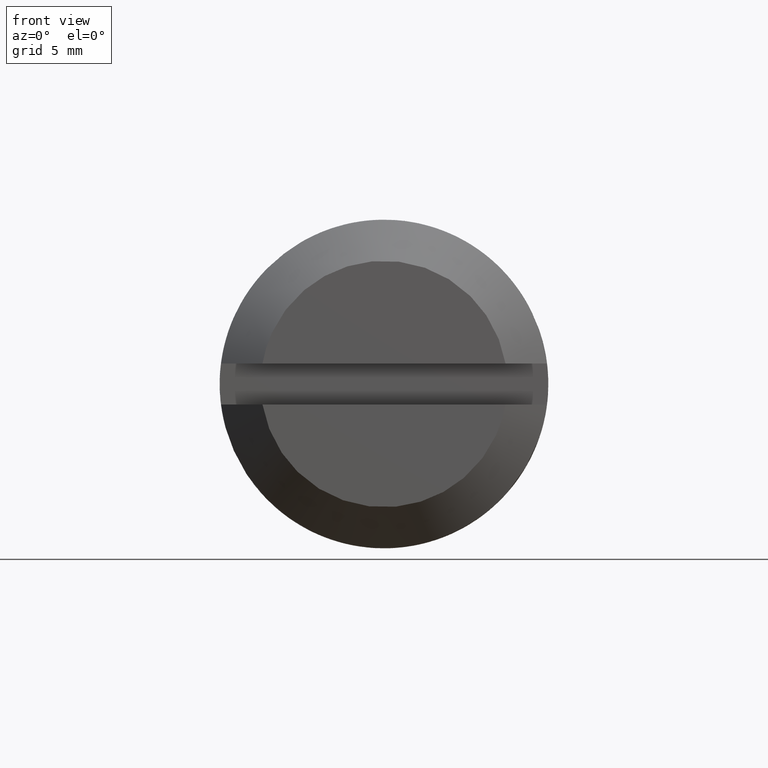
[diagram: clean part render]
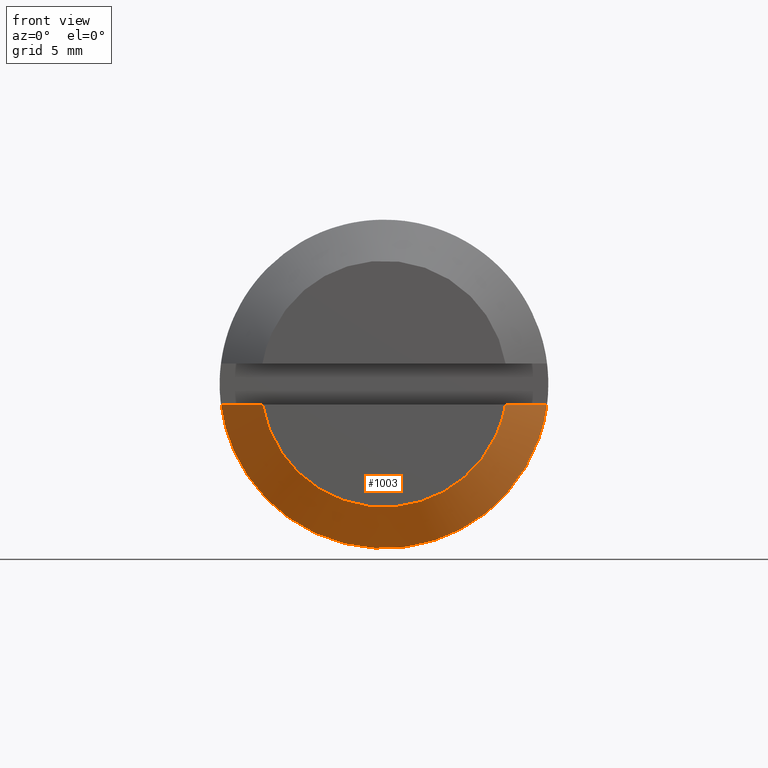
[diagram: same view with one face highlighted and labeled with its STEP entity id]
A machine part, front view. The second image highlights one B-rep face of the part: STEP entity #1003.
In plain terms, the highlighted face is a freeform B-spline surface patch.
Its self-contained STEP definition (entity closure, byte-faithful):
#668=CARTESIAN_POINT('',(7.937253933193770,-25.500000000000000,-1.0));
#669=VERTEX_POINT('',#668);
#675=CARTESIAN_POINT('',(-7.310557780470655,-25.500000000000000,-3.248960593541331));
#676=VERTEX_POINT('',#675);
#677=CARTESIAN_POINT('',(-7.310557780470655,-25.500000000000000,-3.248960593541332));
#678=CARTESIAN_POINT('',(-5.199099219651420,-25.499999999999996,-8.000000000000002));
#679=CARTESIAN_POINT('',(0.0,-25.500000000000000,-8.000000000000002));
#680=CARTESIAN_POINT('',(7.055336829505573,-25.500000000000000,-8.000000000000002));
#681=CARTESIAN_POINT('',(7.937253933193772,-25.500000000000000,-1.000000000000005));
#689=(BOUNDED_CURVE()B_SPLINE_CURVE(2,(#677,#678,#679,#680,#681),.UNSPECIFIED.,.F.,.U.)B_SPLINE_CURVE_WITH_KNOTS((3,2,3),(0.105607617248739,0.500000000000000,1.0),.UNSPECIFIED.)CURVE()GEOMETRIC_REPRESENTATION_ITEM()RATIONAL_B_SPLINE_CURVE((0.916698320393173,0.802803808624370,1.0,0.750000000000000,1.0))REPRESENTATION_ITEM(''));
#690=EDGE_CURVE('',#676,#669,#689,.T.);
#717=CARTESIAN_POINT('',(-7.937253933193770,-25.500000000000000,-1.0));
#718=VERTEX_POINT('',#717);
#719=CARTESIAN_POINT('',(-7.937253933193772,-25.500000000000000,-1.000000000000001));
#720=CARTESIAN_POINT('',(-7.789759942857692,-25.500000000000004,-2.170697254917499));
#721=CARTESIAN_POINT('',(-7.310557780470655,-25.500000000000000,-3.248960593541332));
#729=(BOUNDED_CURVE()B_SPLINE_CURVE(2,(#719,#720,#721),.UNSPECIFIED.,.F.,.U.)B_SPLINE_CURVE_WITH_KNOTS((3,3),(0.0,0.105607617248739),.UNSPECIFIED.)CURVE()GEOMETRIC_REPRESENTATION_ITEM()RATIONAL_B_SPLINE_CURVE((1.0,0.947196191375630,0.916698320393173))REPRESENTATION_ITEM(''));
#730=EDGE_CURVE('',#718,#676,#729,.T.);
#853=CARTESIAN_POINT('',(-5.916079783099621,-27.500000000000000,-1.0));
#854=VERTEX_POINT('',#853);
#855=CARTESIAN_POINT('',(-7.937253933193770,-25.500000000000000,-1.0));
#856=CARTESIAN_POINT('',(-7.305597290251798,-26.126700500865638,-1.000000000000000));
#857=CARTESIAN_POINT('',(-6.673412940183696,-26.752868259125268,-1.0));
#858=CARTESIAN_POINT('',(-5.998690206216792,-27.418527385256070,-1.0));
#859=CARTESIAN_POINT('',(-5.957387578147552,-27.459266300769510,-1.0));
#860=CARTESIAN_POINT('',(-5.916079783099621,-27.500000000000000,-1.0));
#861=B_SPLINE_CURVE_WITH_KNOTS('',3,(#855,#856,#857,#858,#859,#860),.UNSPECIFIED.,.F.,.U.,(4,2,4),(0.0,0.124999999999999,0.133149781479887),.UNSPECIFIED.);
#862=EDGE_CURVE('',#718,#854,#861,.T.);
#864=CARTESIAN_POINT('',(5.916079783099621,-27.500000000000000,-1.0));
#865=VERTEX_POINT('',#864);
#871=CARTESIAN_POINT('',(5.916079783099621,-27.500000000000000,-1.0));
#872=CARTESIAN_POINT('',(5.958590071261791,-27.458080475747249,-1.0));
#873=CARTESIAN_POINT('',(6.001094946099601,-27.416155329950239,-1.0));
#874=CARTESIAN_POINT('',(6.675814878663323,-26.750488460958589,-1.0));
#875=CARTESIAN_POINT('',(7.306798023981622,-26.125509104178921,-1.0));
#876=CARTESIAN_POINT('',(7.937253933193770,-25.500000000000000,-1.0));
#877=B_SPLINE_CURVE_WITH_KNOTS('',3,(#871,#872,#873,#874,#875,#876),.UNSPECIFIED.,.F.,.U.,(4,2,4),(0.866597023677402,0.874999999999998,1.0),.UNSPECIFIED.);
#878=EDGE_CURVE('',#865,#669,#877,.T.);
#934=CARTESIAN_POINT('',(-5.916079783099617,-27.500000000000000,-0.999999999999998));
#935=CARTESIAN_POINT('',(-5.070925528371102,-27.500000000000000,-6.000000000000003));
#936=CARTESIAN_POINT('',(0.0,-27.500000000000000,-6.000000000000002));
#937=CARTESIAN_POINT('',(5.070925528371100,-27.500000000000000,-6.000000000000003));
#938=CARTESIAN_POINT('',(5.916079783099616,-27.500000000000000,-1.000000000000001));
#946=(BOUNDED_CURVE()B_SPLINE_CURVE(2,(#934,#935,#936,#937,#938),.UNSPECIFIED.,.F.,.U.)B_SPLINE_CURVE_WITH_KNOTS((3,2,3),(0.0,0.500000000000000,1.0),.UNSPECIFIED.)CURVE()GEOMETRIC_REPRESENTATION_ITEM()RATIONAL_B_SPLINE_CURVE((1.0,0.763762615825973,1.0,0.763762615825973,1.0))REPRESENTATION_ITEM(''));
#947=EDGE_CURVE('',#854,#865,#946,.T.);
#978=CARTESIAN_POINT('',(-5.909598192772704,-27.550000000000001,-0.692206038674563));
#979=CARTESIAN_POINT('',(-7.996580243623744,-25.448750000000000,-0.936659473761105));
#980=CARTESIAN_POINT('',(-5.280842496271755,-27.550000000000004,-6.060107097226998));
#981=CARTESIAN_POINT('',(-7.145778680354286,-25.448750000000000,-8.200241557403174));
#982=CARTESIAN_POINT('',(0.122609373505003,-27.550000000000001,-5.948736583639310));
#983=CARTESIAN_POINT('',(0.165909028307924,-25.448750000000000,-8.049540406558997));
#984=CARTESIAN_POINT('',(5.526061243281761,-27.550000000000004,-5.837366070051625));
#985=CARTESIAN_POINT('',(7.477596736970136,-25.448750000000000,-7.898839255714822));
#986=CARTESIAN_POINT('',(5.933101368111947,-27.550000000000001,-0.448116230132440));
#987=CARTESIAN_POINT('',(8.028383594959889,-25.448750000000000,-0.606369041656104));
#995=(BOUNDED_SURFACE()B_SPLINE_SURFACE(1,2,((#978,#980,#982,#984,#986),(#979,#981,#983,#985,#987)),.UNSPECIFIED.,.F.,.F.,.U.)B_SPLINE_SURFACE_WITH_KNOTS((2,2),(3,2,3),(0.0,2.971616247936475),(0.0,12.443022338070280,24.886044676140550),.UNSPECIFIED.)GEOMETRIC_REPRESENTATION_ITEM()RATIONAL_B_SPLINE_SURFACE(((1.0,0.740218127486832,1.0,0.740218127486832,1.0),(1.0,0.740218127486832,1.0,0.740218127486832,1.0)))REPRESENTATION_ITEM('')SURFACE());
#996=ORIENTED_EDGE('',*,*,#862,.F.);
#997=ORIENTED_EDGE('',*,*,#730,.T.);
#998=ORIENTED_EDGE('',*,*,#690,.T.);
#999=ORIENTED_EDGE('',*,*,#878,.F.);
#1000=ORIENTED_EDGE('',*,*,#947,.F.);
#1001=EDGE_LOOP('',(#996,#997,#998,#999,#1000));
#1002=FACE_OUTER_BOUND('',#1001,.T.);
#1003=ADVANCED_FACE('',(#1002),#995,.T.);